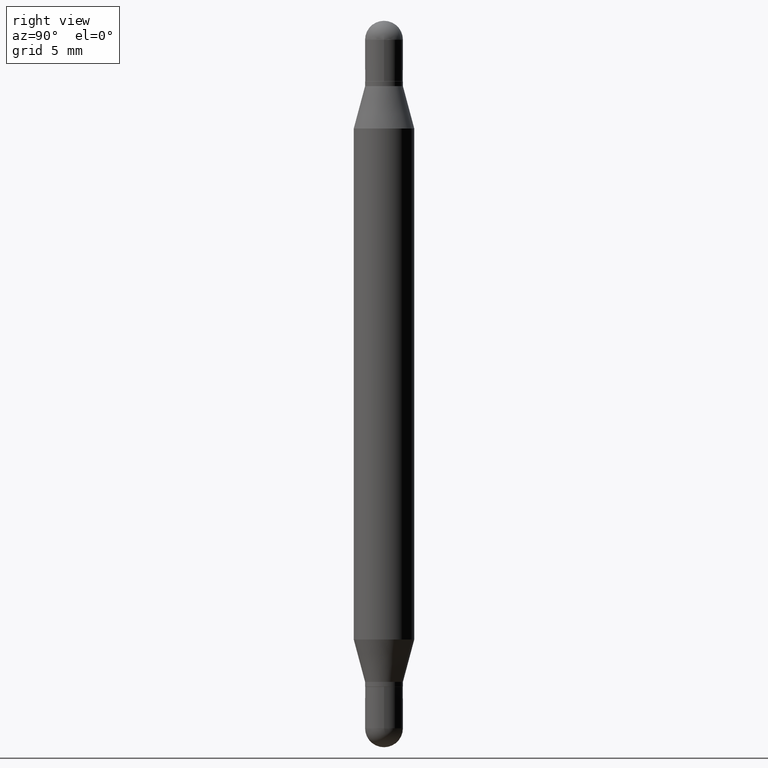
[diagram: clean part render]
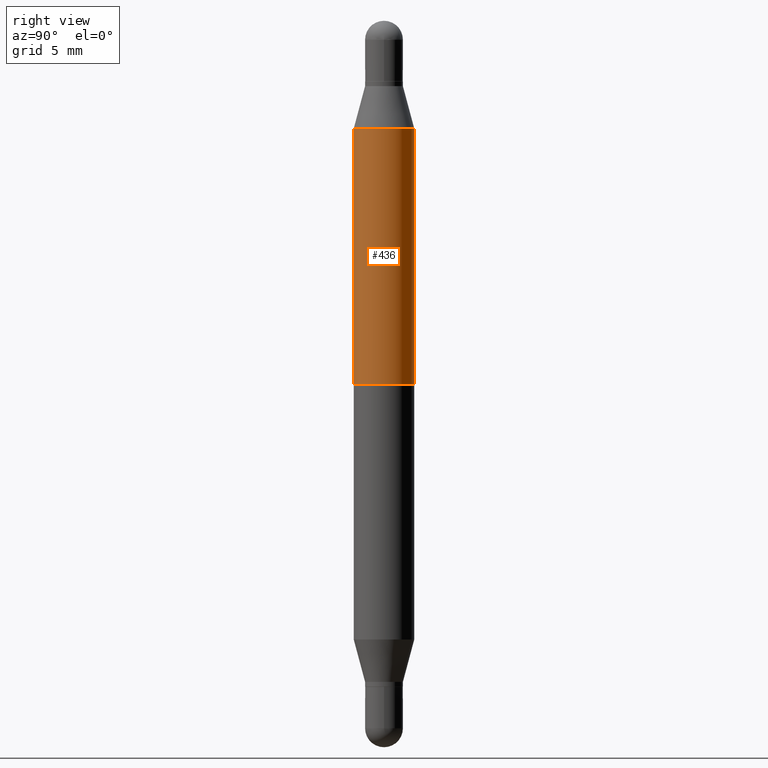
[diagram: same view with one face highlighted and labeled with its STEP entity id]
A machine part, right view. The second image highlights one B-rep face of the part: STEP entity #436.
In plain terms, the highlighted cylindrical surface (edge-blend (fillet) strip) has radius 1.5875 mm, axis along (-0, -0, -1).
Its self-contained STEP definition (entity closure, byte-faithful):
#10 = EDGE_CURVE ( 'NONE', #963, #708, #491, .T. ) ;
#23 = LINE ( 'NONE', #543, #871 ) ;
#74 = CARTESIAN_POINT ( 'NONE',  ( 4.287811248607519320E-16, 0.06249999999999921590, -0.2225165914374915288 ) ) ;
#136 = EDGE_CURVE ( 'NONE', #1041, #708, #23, .T. ) ;
#165 = CARTESIAN_POINT ( 'NONE',  ( -4.364351673553731805E-16, -0.06250000000000262290, -0.7499999999999998890 ) ) ;
#200 = ORIENTED_EDGE ( 'NONE', *, *, #10, .F. ) ;
#205 = DIRECTION ( 'NONE',  ( -2.445629184337248949E-29, -3.479844137619810818E-15, -1.000000000000000000 ) ) ;
#211 = FACE_OUTER_BOUND ( 'NONE', #1103, .T. ) ;
#270 = DIRECTION ( 'NONE',  ( 0.000000000000000000, 1.000000000000000000, -4.370956789862821150E-15 ) ) ;
#274 = DIRECTION ( 'NONE',  ( -0.000000000000000000, -3.485547902910486918E-15, -1.000000000000000000 ) ) ;
#301 = AXIS2_PLACEMENT_3D ( 'NONE', #881, #205, #992 ) ;
#381 = CARTESIAN_POINT ( 'NONE',  ( 4.287811248607454732E-16, 0.06249999999999737710, -0.7500000000000004441 ) ) ;
#436 = ADVANCED_FACE ( 'NONE', ( #211 ), #886, .T. ) ;
#450 = ORIENTED_EDGE ( 'NONE', *, *, #862, .F. ) ;
#491 = CIRCLE ( 'NONE', #544, 0.06250000000000000000 ) ;
#543 = CARTESIAN_POINT ( 'NONE',  ( -4.364351673553916201E-16, -0.06250000000000521805, -1.500000000000000222 ) ) ;
#544 = AXIS2_PLACEMENT_3D ( 'NONE', #1044, #274, #270 ) ;
#580 = VERTEX_POINT ( 'NONE', #74 ) ;
#598 = CARTESIAN_POINT ( 'NONE',  ( 4.287811248607206733E-16, 0.06249999999999477501, -1.500000000000000666 ) ) ;
#613 = AXIS2_PLACEMENT_3D ( 'NONE', #900, #701, #894 ) ;
#644 = DIRECTION ( 'NONE',  ( -2.445629184337248949E-29, -3.479844137619810818E-15, -1.000000000000000000 ) ) ;
#666 = CIRCLE ( 'NONE', #613, 0.06250000000000000000 ) ;
#701 = DIRECTION ( 'NONE',  ( 2.445629184337248949E-29, 3.479844137619810818E-15, 1.000000000000000000 ) ) ;
#708 = VERTEX_POINT ( 'NONE', #165 ) ;
#757 = EDGE_CURVE ( 'NONE', #580, #963, #786, .T. ) ;
#786 = LINE ( 'NONE', #598, #1111 ) ;
#858 = ORIENTED_EDGE ( 'NONE', *, *, #136, .T. ) ;
#862 = EDGE_CURVE ( 'NONE', #1041, #580, #666, .T. ) ;
#871 = VECTOR ( 'NONE', #644, 39.37007874015748143 ) ;
#881 = CARTESIAN_POINT ( 'NONE',  ( 0.000000000000000000, -5.228321854365732350E-15, -1.500000000000000444 ) ) ;
#886 = CYLINDRICAL_SURFACE ( 'NONE', #301, 0.06250000000000000000 ) ;
#894 = DIRECTION ( 'NONE',  ( -6.982962677686265922E-15, -1.000000000000000000, 3.278217592397115862E-15 ) ) ;
#900 = CARTESIAN_POINT ( 'NONE',  ( 3.124250706487097646E-29, -7.828787041729109440E-16, -0.2225165914374913068 ) ) ;
#931 = ORIENTED_EDGE ( 'NONE', *, *, #757, .F. ) ;
#948 = DIRECTION ( 'NONE',  ( -2.445629184337248949E-29, -3.479844137619810818E-15, -1.000000000000000000 ) ) ;
#963 = VERTEX_POINT ( 'NONE', #381 ) ;
#992 = DIRECTION ( 'NONE',  ( -6.982962677686265922E-15, -1.000000000000000000, 4.370956789862821150E-15 ) ) ;
#1041 = VERTEX_POINT ( 'NONE', #1083 ) ;
#1044 = CARTESIAN_POINT ( 'NONE',  ( 1.834221888252937202E-29, -2.618438751150872954E-15, -0.7500000000000002220 ) ) ;
#1083 = CARTESIAN_POINT ( 'NONE',  ( -4.364351673553603615E-16, -0.06250000000000079103, -0.2225165914374911125 ) ) ;
#1103 = EDGE_LOOP ( 'NONE', ( #931, #450, #858, #200 ) ) ;
#1111 = VECTOR ( 'NONE', #948, 39.37007874015748143 ) ;